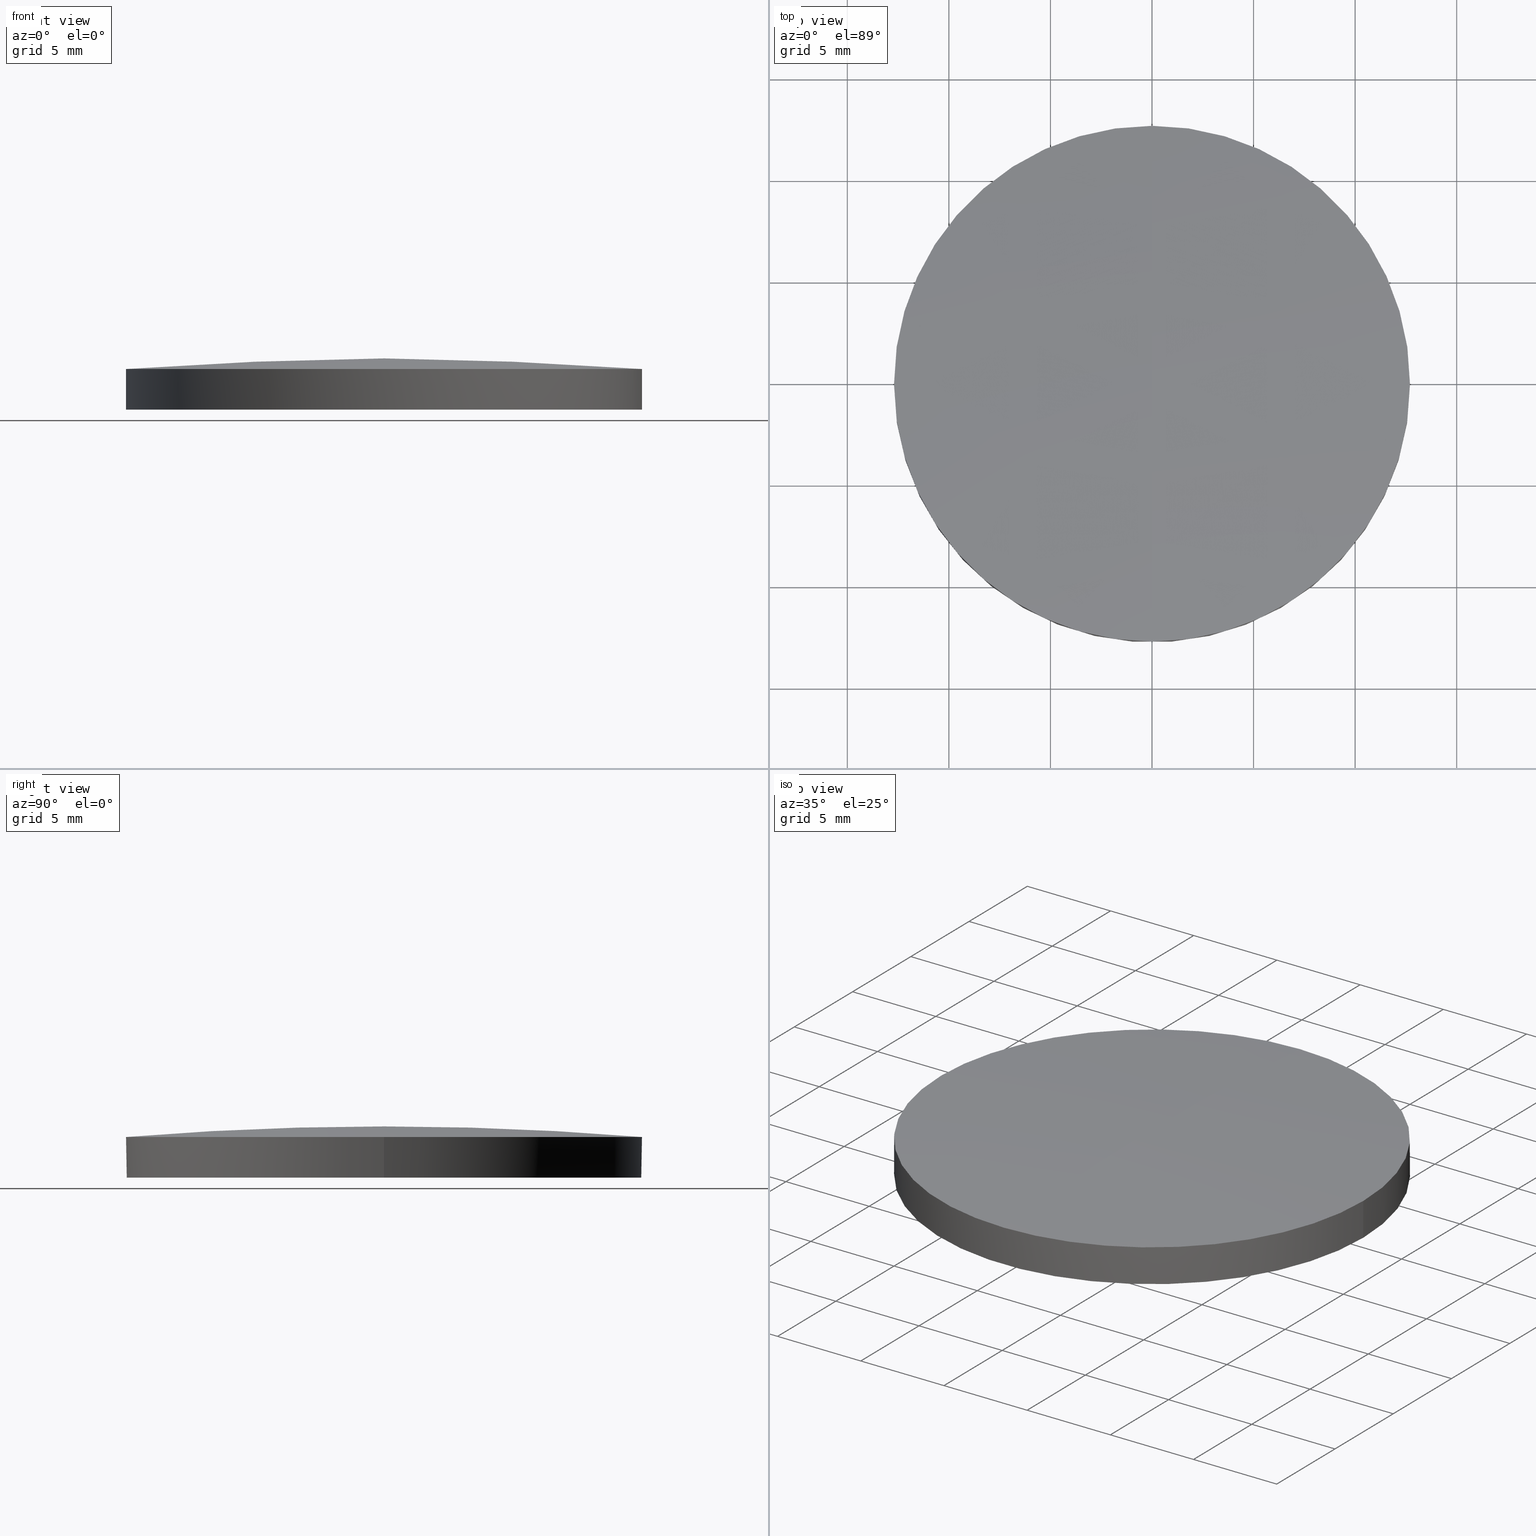
[diagram: canonical four-view strip — front | top / right | iso, engineering-drawing reading convention]
A machine part, canonical four-view strip (front | top / right | iso — engineering-drawing reading convention). The complete STEP part file that produces these views, byte-faithful:
ISO-10303-21;
HEADER;
FILE_DESCRIPTION (( 'STEP AP214' ),
    '1' );
FILE_NAME ('4442-E0W.STEP',
    '2009-12-21T17:01:34',
    ( ' ' ),
    ( ' ' ),
    'SwSTEP 2.0',
    'SolidWorks 2009',
    '' );
FILE_SCHEMA (( 'AUTOMOTIVE_DESIGN' ));
ENDSEC;

DATA;
#1 = CARTESIAN_POINT ( 'NONE',  ( 0.0000000000000000000, 0.0000000000000000000, 0.7372090656191160300 ) ) ;
#2 = AXIS2_PLACEMENT_3D ( 'NONE', #1, #3, #5 ) ;
#3 = DIRECTION ( 'NONE',  ( -0.0000000000000000000, -0.0000000000000000000, 1.000000000000000000 ) ) ;
#4 = MECHANICAL_DESIGN_GEOMETRIC_PRESENTATION_REPRESENTATION (  '', ( #92 ), #9 ) ;
#5 = DIRECTION ( 'NONE',  ( 1.000000000000000000, 0.0000000000000000000, 0.0000000000000000000 ) ) ;
#6 =( LENGTH_UNIT ( ) NAMED_UNIT ( * ) SI_UNIT ( .MILLI., .METRE. ) );
#7 =( NAMED_UNIT ( * ) PLANE_ANGLE_UNIT ( ) SI_UNIT ( $, .RADIAN. ) );
#8 =( NAMED_UNIT ( * ) SI_UNIT ( $, .STERADIAN. ) SOLID_ANGLE_UNIT ( ) );
#9 =( GEOMETRIC_REPRESENTATION_CONTEXT ( 3 ) GLOBAL_UNCERTAINTY_ASSIGNED_CONTEXT ( ( #11 ) ) GLOBAL_UNIT_ASSIGNED_CONTEXT ( ( #6, #7, #8 ) ) REPRESENTATION_CONTEXT ( 'NONE', 'WORKASPACE' ) );
#10 =( NAMED_UNIT ( * ) SI_UNIT ( $, .STERADIAN. ) SOLID_ANGLE_UNIT ( ) );
#11 = UNCERTAINTY_MEASURE_WITH_UNIT (LENGTH_MEASURE( 1.000000000000000100E-005 ), #6, 'distance_accuracy_value', 'NONE');
#12 =( NAMED_UNIT ( * ) SI_UNIT ( $, .STERADIAN. ) SOLID_ANGLE_UNIT ( ) );
#13 = ORIENTED_EDGE ( 'NONE', *, *, #34, .F. ) ;
#14 = ORIENTED_EDGE ( 'NONE', *, *, #52, .F. ) ;
#15 = ORIENTED_EDGE ( 'NONE', *, *, #25, .F. ) ;
#16 = ADVANCED_FACE ( 'NONE', ( #33 ), #63, .T. ) ;
#17 = DIRECTION ( 'NONE',  ( -0.0000000000000000000, -0.0000000000000000000, 1.000000000000000000 ) ) ;
#18 = VECTOR ( 'NONE', #17, 1000.000000000000000 ) ;
#19 = CARTESIAN_POINT ( 'NONE',  ( 12.69999999999999900, 0.0000000000000000000, 4.308132045400366600 ) ) ;
#20 = LINE ( 'NONE', #19, #18 ) ;
#21 = CIRCLE ( 'NONE', #2, 12.69999999999999900 ) ;
#22 = ORIENTED_EDGE ( 'NONE', *, *, #23, .F. ) ;
#23 = EDGE_CURVE ( 'NONE', #49, #77, #20, .T. ) ;
#24 = ORIENTED_EDGE ( 'NONE', *, *, #25, .T. ) ;
#25 = EDGE_CURVE ( 'NONE', #73, #77, #21, .T. ) ;
#26 = ORIENTED_EDGE ( 'NONE', *, *, #75, .F. ) ;
#27 = EDGE_CURVE ( 'NONE', #36, #56, #103, .T. ) ;
#28 = ORIENTED_EDGE ( 'NONE', *, *, #80, .T. ) ;
#29 = ADVANCED_FACE ( 'NONE', ( #98 ), #140, .T. ) ;
#30 = ADVANCED_FACE ( 'NONE', ( #118 ), #141, .T. ) ;
#31 = FILL_AREA_STYLE_COLOUR ( '', #32 ) ;
#32 = COLOUR_RGB ( '',0.9568627450980391500, 0.9490196078431372100, 0.9607843137254902200 ) ;
#33 = FACE_OUTER_BOUND ( 'NONE', #35, .T. ) ;
#34 = EDGE_CURVE ( 'NONE', #49, #36, #128, .T. ) ;
#35 = EDGE_LOOP ( 'NONE', ( #72, #48, #82, #57 ) ) ;
#36 = VERTEX_POINT ( 'NONE', #123 ) ;
#37 = DIRECTION ( 'NONE',  ( 0.0000000000000000000, 1.000000000000000000, 0.0000000000000000000 ) ) ;
#38 = DIRECTION ( 'NONE',  ( -1.000000000000000000, 0.0000000000000000000, 0.0000000000000000000 ) ) ;
#39 = CARTESIAN_POINT ( 'NONE',  ( 0.0000000000000000000, 0.0000000000000000000, -153.2600000000000200 ) ) ;
#40 = AXIS2_PLACEMENT_3D ( 'NONE', #39, #38, #37 ) ;
#41 =( LENGTH_UNIT ( ) NAMED_UNIT ( * ) SI_UNIT ( .MILLI., .METRE. ) );
#42 = STYLED_ITEM ( 'NONE', ( #43 ), #16 ) ;
#43 = PRESENTATION_STYLE_ASSIGNMENT (( #44 ) ) ;
#44 = SURFACE_STYLE_USAGE ( .BOTH. , #45 ) ;
#45 = SURFACE_SIDE_STYLE ('',( #46 ) ) ;
#46 = SURFACE_STYLE_FILL_AREA ( #59 ) ;
#47 = ADVANCED_FACE ( 'NONE', ( #122 ), #153, .T. ) ;
#48 = ORIENTED_EDGE ( 'NONE', *, *, #88, .T. ) ;
#49 = VERTEX_POINT ( 'NONE', #166 ) ;
#50 = ORIENTED_EDGE ( 'NONE', *, *, #83, .F. ) ;
#51 = ORIENTED_EDGE ( 'NONE', *, *, #75, .T. ) ;
#52 = EDGE_CURVE ( 'NONE', #36, #49, #165, .T. ) ;
#53 = ORIENTED_EDGE ( 'NONE', *, *, #27, .F. ) ;
#54 = MECHANICAL_DESIGN_GEOMETRIC_PRESENTATION_REPRESENTATION (  '', ( #42 ), #58 ) ;
#55 = PRESENTATION_LAYER_ASSIGNMENT (  '', '', ( #42 ) ) ;
#56 = VERTEX_POINT ( 'NONE', #206 ) ;
#57 = ORIENTED_EDGE ( 'NONE', *, *, #80, .F. ) ;
#58 =( GEOMETRIC_REPRESENTATION_CONTEXT ( 3 ) GLOBAL_UNCERTAINTY_ASSIGNED_CONTEXT ( ( #85 ) ) GLOBAL_UNIT_ASSIGNED_CONTEXT ( ( #41, #74, #12 ) ) REPRESENTATION_CONTEXT ( 'NONE', 'WORKASPACE' ) );
#59 = FILL_AREA_STYLE ('',( #31 ) ) ;
#60 = APPLICATION_CONTEXT ( 'automotive_design' ) ;
#61 = UNCERTAINTY_MEASURE_WITH_UNIT (LENGTH_MEASURE( 1.000000000000000100E-005 ), #129, 'distance_accuracy_value', 'NONE');
#62 = EDGE_LOOP ( 'NONE', ( #50, #24, #51, #28 ) ) ;
#63 = SPHERICAL_SURFACE ( 'NONE', #40, 154.5200000000000100 ) ;
#64 = EDGE_LOOP ( 'NONE', ( #13, #14 ) ) ;
#65 = CLOSED_SHELL ( 'NONE', ( #30, #16, #47, #29, #76 ) ) ;
#66 = EDGE_LOOP ( 'NONE', ( #53, #68, #69, #15, #67 ) ) ;
#67 = ORIENTED_EDGE ( 'NONE', *, *, #88, .F. ) ;
#68 = ORIENTED_EDGE ( 'NONE', *, *, #52, .T. ) ;
#69 = ORIENTED_EDGE ( 'NONE', *, *, #23, .T. ) ;
#70 = VERTEX_POINT ( 'NONE', #202 ) ;
#71 = ORIENTED_EDGE ( 'NONE', *, *, #27, .T. ) ;
#72 = ORIENTED_EDGE ( 'NONE', *, *, #81, .T. ) ;
#73 = VERTEX_POINT ( 'NONE', #164 ) ;
#74 =( NAMED_UNIT ( * ) PLANE_ANGLE_UNIT ( ) SI_UNIT ( $, .RADIAN. ) );
#75 = EDGE_CURVE ( 'NONE', #77, #70, #195, .T. ) ;
#76 = ADVANCED_FACE ( 'NONE', ( #198 ), #201, .F. ) ;
#77 = VERTEX_POINT ( 'NONE', #171 ) ;
#78 = ORIENTED_EDGE ( 'NONE', *, *, #34, .T. ) ;
#79 = EDGE_LOOP ( 'NONE', ( #78, #71, #84, #26, #22 ) ) ;
#80 = EDGE_CURVE ( 'NONE', #70, #89, #170, .T. ) ;
#81 = EDGE_CURVE ( 'NONE', #70, #56, #177, .T. ) ;
#82 = ORIENTED_EDGE ( 'NONE', *, *, #83, .T. ) ;
#83 = EDGE_CURVE ( 'NONE', #73, #89, #154, .T. ) ;
#84 = ORIENTED_EDGE ( 'NONE', *, *, #81, .F. ) ;
#85 = UNCERTAINTY_MEASURE_WITH_UNIT (LENGTH_MEASURE( 1.000000000000000100E-005 ), #41, 'distance_accuracy_value', 'NONE');
#86 = PRODUCT ( '4442-E0W', '4442-E0W', '', ( #87 ) ) ;
#87 = PRODUCT_CONTEXT ( 'NONE', #261, 'mechanical' ) ;
#88 = EDGE_CURVE ( 'NONE', #56, #73, #235, .T. ) ;
#89 = VERTEX_POINT ( 'NONE', #253 ) ;
#90 = MANIFOLD_SOLID_BREP ( 'NONE', #65 ) ;
#91 = PRESENTATION_LAYER_ASSIGNMENT (  '', '', ( #92 ) ) ;
#92 = STYLED_ITEM ( 'NONE', ( #93 ), #29 ) ;
#93 = PRESENTATION_STYLE_ASSIGNMENT (( #94 ) ) ;
#94 = SURFACE_STYLE_USAGE ( .BOTH. , #95 ) ;
#95 = SURFACE_SIDE_STYLE ('',( #96 ) ) ;
#96 = SURFACE_STYLE_FILL_AREA ( #104 ) ;
#97 = COLOUR_RGB ( '',0.9568627450980391500, 0.9490196078431372100, 0.9607843137254902200 ) ;
#98 = FACE_OUTER_BOUND ( 'NONE', #66, .T. ) ;
#99 = FILL_AREA_STYLE_COLOUR ( '', #97 ) ;
#100 = DIRECTION ( 'NONE',  ( -0.0000000000000000000, -0.0000000000000000000, 1.000000000000000000 ) ) ;
#101 = VECTOR ( 'NONE', #100, 1000.000000000000000 ) ;
#102 = CARTESIAN_POINT ( 'NONE',  ( -12.69999999999999900, 1.555250069354419100E-015, 4.308132045400366600 ) ) ;
#103 = LINE ( 'NONE', #102, #101 ) ;
#104 = FILL_AREA_STYLE ('',( #99 ) ) ;
#105 = PRODUCT_DEFINITION ( 'UNKNOWN', '', #155, #106 ) ;
#106 = PRODUCT_DEFINITION_CONTEXT ( 'detailed design', #60, 'design' ) ;
#107 = APPLICATION_PROTOCOL_DEFINITION ( 'draft international standard', 'automotive_design', 1998, #60 ) ;
#108 = CARTESIAN_POINT ( 'NONE',  ( 0.0000000000000000000, 0.0000000000000000000, 4.308132045400366600 ) ) ;
#109 = DIRECTION ( 'NONE',  ( 1.000000000000000000, 0.0000000000000000000, 0.0000000000000000000 ) ) ;
#110 = PRESENTATION_LAYER_ASSIGNMENT (  '', '', ( #111 ) ) ;
#111 = STYLED_ITEM ( 'NONE', ( #112 ), #47 ) ;
#112 = PRESENTATION_STYLE_ASSIGNMENT (( #113 ) ) ;
#113 = SURFACE_STYLE_USAGE ( .BOTH. , #114 ) ;
#114 = SURFACE_SIDE_STYLE ('',( #115 ) ) ;
#115 = SURFACE_STYLE_FILL_AREA ( #119 ) ;
#116 = AXIS2_PLACEMENT_3D ( 'NONE', #108, #145, #109 ) ;
#117 = FILL_AREA_STYLE_COLOUR ( '', #136 ) ;
#118 = FACE_OUTER_BOUND ( 'NONE', #79, .T. ) ;
#119 = FILL_AREA_STYLE ('',( #120 ) ) ;
#120 = FILL_AREA_STYLE_COLOUR ( '', #121 ) ;
#121 = COLOUR_RGB ( '',0.9568627450980391500, 0.9490196078431372100, 0.9607843137254902200 ) ;
#122 = FACE_OUTER_BOUND ( 'NONE', #62, .T. ) ;
#123 = CARTESIAN_POINT ( 'NONE',  ( -12.69999999999999900, 1.555250069354419100E-015, -1.259999999999999800 ) ) ;
#124 = DIRECTION ( 'NONE',  ( 1.000000000000000000, 0.0000000000000000000, 0.0000000000000000000 ) ) ;
#125 = DIRECTION ( 'NONE',  ( -0.0000000000000000000, -0.0000000000000000000, 1.000000000000000000 ) ) ;
#126 = CARTESIAN_POINT ( 'NONE',  ( 0.0000000000000000000, 0.0000000000000000000, -1.259999999999999800 ) ) ;
#127 = AXIS2_PLACEMENT_3D ( 'NONE', #126, #125, #124 ) ;
#128 = CIRCLE ( 'NONE', #127, 12.69999999999999900 ) ;
#129 =( LENGTH_UNIT ( ) NAMED_UNIT ( * ) SI_UNIT ( .MILLI., .METRE. ) );
#130 = MECHANICAL_DESIGN_GEOMETRIC_PRESENTATION_REPRESENTATION (  '', ( #111 ), #191 ) ;
#131 = MECHANICAL_DESIGN_GEOMETRIC_PRESENTATION_REPRESENTATION (  '', ( #137 ), #134 ) ;
#132 = PRESENTATION_LAYER_ASSIGNMENT (  '', '', ( #137 ) ) ;
#133 =( LENGTH_UNIT ( ) NAMED_UNIT ( * ) SI_UNIT ( .MILLI., .METRE. ) );
#134 =( GEOMETRIC_REPRESENTATION_CONTEXT ( 3 ) GLOBAL_UNCERTAINTY_ASSIGNED_CONTEXT ( ( #148 ) ) GLOBAL_UNIT_ASSIGNED_CONTEXT ( ( #133, #139, #135 ) ) REPRESENTATION_CONTEXT ( 'NONE', 'WORKASPACE' ) );
#135 =( NAMED_UNIT ( * ) SI_UNIT ( $, .STERADIAN. ) SOLID_ANGLE_UNIT ( ) );
#136 = COLOUR_RGB ( '',0.9568627450980391500, 0.9490196078431372100, 0.9607843137254902200 ) ;
#137 = STYLED_ITEM ( 'NONE', ( #138 ), #30 ) ;
#138 = PRESENTATION_STYLE_ASSIGNMENT (( #142 ) ) ;
#139 =( NAMED_UNIT ( * ) PLANE_ANGLE_UNIT ( ) SI_UNIT ( $, .RADIAN. ) );
#140 = CYLINDRICAL_SURFACE ( 'NONE', #116, 12.69999999999999900 ) ;
#141 = CYLINDRICAL_SURFACE ( 'NONE', #146, 12.69999999999999900 ) ;
#142 = SURFACE_STYLE_USAGE ( .BOTH. , #143 ) ;
#143 = SURFACE_SIDE_STYLE ('',( #144 ) ) ;
#144 = SURFACE_STYLE_FILL_AREA ( #152 ) ;
#145 = DIRECTION ( 'NONE',  ( -0.0000000000000000000, -0.0000000000000000000, 1.000000000000000000 ) ) ;
#146 = AXIS2_PLACEMENT_3D ( 'NONE', #147, #151, #150 ) ;
#147 = CARTESIAN_POINT ( 'NONE',  ( 0.0000000000000000000, 0.0000000000000000000, 4.308132045400366600 ) ) ;
#148 = UNCERTAINTY_MEASURE_WITH_UNIT (LENGTH_MEASURE( 1.000000000000000100E-005 ), #133, 'distance_accuracy_value', 'NONE');
#149 =( NAMED_UNIT ( * ) PLANE_ANGLE_UNIT ( ) SI_UNIT ( $, .RADIAN. ) );
#150 = DIRECTION ( 'NONE',  ( 1.000000000000000000, 0.0000000000000000000, 0.0000000000000000000 ) ) ;
#151 = DIRECTION ( 'NONE',  ( -0.0000000000000000000, -0.0000000000000000000, 1.000000000000000000 ) ) ;
#152 = FILL_AREA_STYLE ('',( #117 ) ) ;
#153 = SPHERICAL_SURFACE ( 'NONE', #186, 154.5200000000000100 ) ;
#154 = CIRCLE ( 'NONE', #210, 154.5200000000000100 ) ;
#155 = PRODUCT_DEFINITION_FORMATION_WITH_SPECIFIED_SOURCE ( 'ANY', '', #86, .NOT_KNOWN. ) ;
#156 = DIRECTION ( 'NONE',  ( 1.000000000000000000, 0.0000000000000000000, 0.0000000000000000000 ) ) ;
#157 = DIRECTION ( 'NONE',  ( -0.0000000000000000000, -0.0000000000000000000, 1.000000000000000000 ) ) ;
#158 = DIRECTION ( 'NONE',  ( 1.000000000000000000, 0.0000000000000000000, 0.0000000000000000000 ) ) ;
#159 = DIRECTION ( 'NONE',  ( -0.0000000000000000000, -0.0000000000000000000, 1.000000000000000000 ) ) ;
#160 = CARTESIAN_POINT ( 'NONE',  ( 0.0000000000000000000, 0.0000000000000000000, -1.259999999999999800 ) ) ;
#161 = FILL_AREA_STYLE_COLOUR ( '', #162 ) ;
#162 = COLOUR_RGB ( '',0.9568627450980391500, 0.9490196078431372100, 0.9607843137254902200 ) ;
#163 = DIRECTION ( 'NONE',  ( 1.000000000000000000, 0.0000000000000000000, 0.0000000000000000000 ) ) ;
#164 = CARTESIAN_POINT ( 'NONE',  ( -1.555250069354422800E-015, -12.70000000000002900, 0.7372090656191268000 ) ) ;
#165 = CIRCLE ( 'NONE', #205, 12.69999999999999900 ) ;
#166 = CARTESIAN_POINT ( 'NONE',  ( 12.69999999999999900, 0.0000000000000000000, -1.259999999999999800 ) ) ;
#167 = MECHANICAL_DESIGN_GEOMETRIC_PRESENTATION_REPRESENTATION (  '', ( #169 ), #204 ) ;
#168 = PRESENTATION_LAYER_ASSIGNMENT (  '', '', ( #169 ) ) ;
#169 = STYLED_ITEM ( 'NONE', ( #180 ), #76 ) ;
#170 = CIRCLE ( 'NONE', #189, 154.5200000000000400 ) ;
#171 = CARTESIAN_POINT ( 'NONE',  ( 12.69999999999999900, 0.0000000000000000000, 0.7372090656191160300 ) ) ;
#172 = DIRECTION ( 'NONE',  ( 1.000000000000000000, 0.0000000000000000000, 0.0000000000000000000 ) ) ;
#173 = DIRECTION ( 'NONE',  ( 0.0000000000000000000, -0.0000000000000000000, 1.000000000000000000 ) ) ;
#174 = AXIS2_PLACEMENT_3D ( 'NONE', #200, #173, #172 ) ;
#175 =( NAMED_UNIT ( * ) PLANE_ANGLE_UNIT ( ) SI_UNIT ( $, .RADIAN. ) );
#176 = AXIS2_PLACEMENT_3D ( 'NONE', #190, #157, #156 ) ;
#177 = CIRCLE ( 'NONE', #176, 12.69999999999999900 ) ;
#178 = DIRECTION ( 'NONE',  ( 0.0000000000000000000, 0.0000000000000000000, -1.000000000000000000 ) ) ;
#179 =( NAMED_UNIT ( * ) SI_UNIT ( $, .STERADIAN. ) SOLID_ANGLE_UNIT ( ) );
#180 = PRESENTATION_STYLE_ASSIGNMENT (( #181 ) ) ;
#181 = SURFACE_STYLE_USAGE ( .BOTH. , #182 ) ;
#182 = SURFACE_SIDE_STYLE ('',( #183 ) ) ;
#183 = SURFACE_STYLE_FILL_AREA ( #197 ) ;
#184 = DIRECTION ( 'NONE',  ( -1.000000000000000000, 0.0000000000000000000, 0.0000000000000000000 ) ) ;
#185 = CARTESIAN_POINT ( 'NONE',  ( 0.0000000000000000000, 0.0000000000000000000, -153.2600000000000200 ) ) ;
#186 = AXIS2_PLACEMENT_3D ( 'NONE', #185, #184, #203 ) ;
#187 = DIRECTION ( 'NONE',  ( 1.000000000000000000, 0.0000000000000000000, 0.0000000000000000000 ) ) ;
#188 = CARTESIAN_POINT ( 'NONE',  ( 0.0000000000000000000, 0.0000000000000000000, -153.2600000000000200 ) ) ;
#189 = AXIS2_PLACEMENT_3D ( 'NONE', #188, #187, #178 ) ;
#190 = CARTESIAN_POINT ( 'NONE',  ( 0.0000000000000000000, 0.0000000000000000000, 0.7372090656191160300 ) ) ;
#191 =( GEOMETRIC_REPRESENTATION_CONTEXT ( 3 ) GLOBAL_UNCERTAINTY_ASSIGNED_CONTEXT ( ( #61 ) ) GLOBAL_UNIT_ASSIGNED_CONTEXT ( ( #129, #149, #10 ) ) REPRESENTATION_CONTEXT ( 'NONE', 'WORKASPACE' ) );
#192 = DIRECTION ( 'NONE',  ( -0.0000000000000000000, -0.0000000000000000000, 1.000000000000000000 ) ) ;
#193 = CARTESIAN_POINT ( 'NONE',  ( 0.0000000000000000000, 0.0000000000000000000, 0.7372090656191160300 ) ) ;
#194 = AXIS2_PLACEMENT_3D ( 'NONE', #193, #192, #163 ) ;
#195 = CIRCLE ( 'NONE', #194, 12.69999999999999900 ) ;
#196 = UNCERTAINTY_MEASURE_WITH_UNIT (LENGTH_MEASURE( 1.000000000000000100E-005 ), #199, 'distance_accuracy_value', 'NONE');
#197 = FILL_AREA_STYLE ('',( #161 ) ) ;
#198 = FACE_OUTER_BOUND ( 'NONE', #64, .T. ) ;
#199 =( LENGTH_UNIT ( ) NAMED_UNIT ( * ) SI_UNIT ( .MILLI., .METRE. ) );
#200 = CARTESIAN_POINT ( 'NONE',  ( 0.0000000000000000000, 4.629164900776995200E-016, -1.259999999999999800 ) ) ;
#201 = PLANE ( 'NONE',  #174 ) ;
#202 = CARTESIAN_POINT ( 'NONE',  ( 0.0000000000000000000, 12.70000000000002900, 0.7372090656191268000 ) ) ;
#203 = DIRECTION ( 'NONE',  ( 0.0000000000000000000, 1.000000000000000000, 0.0000000000000000000 ) ) ;
#204 =( GEOMETRIC_REPRESENTATION_CONTEXT ( 3 ) GLOBAL_UNCERTAINTY_ASSIGNED_CONTEXT ( ( #196 ) ) GLOBAL_UNIT_ASSIGNED_CONTEXT ( ( #199, #175, #179 ) ) REPRESENTATION_CONTEXT ( 'NONE', 'WORKASPACE' ) );
#205 = AXIS2_PLACEMENT_3D ( 'NONE', #160, #159, #158 ) ;
#206 = CARTESIAN_POINT ( 'NONE',  ( -12.69999999999999900, 1.555250069354419100E-015, 0.7372090656191160300 ) ) ;
#207 = SHAPE_DEFINITION_REPRESENTATION ( #208, #215 ) ;
#208 = PRODUCT_DEFINITION_SHAPE ( 'NONE', 'NONE',  #105 ) ;
#209 = UNCERTAINTY_MEASURE_WITH_UNIT (LENGTH_MEASURE( 1.000000000000000100E-005 ), #214, 'distance_accuracy_value', 'NONE');
#210 = AXIS2_PLACEMENT_3D ( 'NONE', #233, #227, #259 ) ;
#211 =( NAMED_UNIT ( * ) PLANE_ANGLE_UNIT ( ) SI_UNIT ( $, .RADIAN. ) );
#212 =( GEOMETRIC_REPRESENTATION_CONTEXT ( 3 ) GLOBAL_UNCERTAINTY_ASSIGNED_CONTEXT ( ( #209 ) ) GLOBAL_UNIT_ASSIGNED_CONTEXT ( ( #214, #213, #257 ) ) REPRESENTATION_CONTEXT ( 'NONE', 'WORKASPACE' ) );
#213 =( NAMED_UNIT ( * ) PLANE_ANGLE_UNIT ( ) SI_UNIT ( $, .RADIAN. ) );
#214 =( LENGTH_UNIT ( ) NAMED_UNIT ( * ) SI_UNIT ( .MILLI., .METRE. ) );
#215 = ADVANCED_BREP_SHAPE_REPRESENTATION ( '4442-E0W', ( #90, #258 ), #212 ) ;
#216 =( NAMED_UNIT ( * ) SI_UNIT ( $, .STERADIAN. ) SOLID_ANGLE_UNIT ( ) );
#217 = STYLED_ITEM ( 'NONE', ( #218 ), #90 ) ;
#218 = PRESENTATION_STYLE_ASSIGNMENT (( #224 ) ) ;
#219 = MECHANICAL_DESIGN_GEOMETRIC_PRESENTATION_REPRESENTATION (  '', ( #217 ), #234 ) ;
#220 = PRESENTATION_LAYER_ASSIGNMENT (  '', '', ( #217 ) ) ;
#221 = DIRECTION ( 'NONE',  ( 1.000000000000000000, 0.0000000000000000000, 0.0000000000000000000 ) ) ;
#222 = UNCERTAINTY_MEASURE_WITH_UNIT (LENGTH_MEASURE( 1.000000000000000100E-005 ), #245, 'distance_accuracy_value', 'NONE');
#223 =( NAMED_UNIT ( * ) SI_UNIT ( $, .STERADIAN. ) SOLID_ANGLE_UNIT ( ) );
#224 = SURFACE_STYLE_USAGE ( .BOTH. , #225 ) ;
#225 = SURFACE_SIDE_STYLE ('',( #226 ) ) ;
#226 = SURFACE_STYLE_FILL_AREA ( #254 ) ;
#227 = DIRECTION ( 'NONE',  ( -1.000000000000000000, 1.224606353822377300E-016, 0.0000000000000000000 ) ) ;
#228 = DIRECTION ( 'NONE',  ( 1.000000000000000000, 0.0000000000000000000, 0.0000000000000000000 ) ) ;
#229 = DIRECTION ( 'NONE',  ( 0.0000000000000000000, 0.0000000000000000000, 1.000000000000000000 ) ) ;
#230 = PRODUCT_RELATED_PRODUCT_CATEGORY ( 'part', '', ( #86 ) ) ;
#231 = CARTESIAN_POINT ( 'NONE',  ( 0.0000000000000000000, 0.0000000000000000000, 0.7372090656191160300 ) ) ;
#232 =( GEOMETRIC_REPRESENTATION_CONTEXT ( 3 ) GLOBAL_UNCERTAINTY_ASSIGNED_CONTEXT ( ( #222 ) ) GLOBAL_UNIT_ASSIGNED_CONTEXT ( ( #245, #246, #223 ) ) REPRESENTATION_CONTEXT ( 'NONE', 'WORKASPACE' ) );
#233 = CARTESIAN_POINT ( 'NONE',  ( 0.0000000000000000000, 0.0000000000000000000, -153.2600000000000200 ) ) ;
#234 =( GEOMETRIC_REPRESENTATION_CONTEXT ( 3 ) GLOBAL_UNCERTAINTY_ASSIGNED_CONTEXT ( ( #244 ) ) GLOBAL_UNIT_ASSIGNED_CONTEXT ( ( #236, #211, #216 ) ) REPRESENTATION_CONTEXT ( 'NONE', 'WORKASPACE' ) );
#235 = CIRCLE ( 'NONE', #252, 12.69999999999999900 ) ;
#236 =( LENGTH_UNIT ( ) NAMED_UNIT ( * ) SI_UNIT ( .MILLI., .METRE. ) );
#237 = SURFACE_SIDE_STYLE ('',( #238 ) ) ;
#238 = SURFACE_STYLE_FILL_AREA ( #239 ) ;
#239 = FILL_AREA_STYLE ('',( #240 ) ) ;
#240 = FILL_AREA_STYLE_COLOUR ( '', #241 ) ;
#241 = COLOUR_RGB ( '',0.7960784313725489700, 0.8235294117647058400, 0.9372549019607843100 ) ;
#242 = DIRECTION ( 'NONE',  ( -0.0000000000000000000, -0.0000000000000000000, 1.000000000000000000 ) ) ;
#243 = CARTESIAN_POINT ( 'NONE',  ( 0.0000000000000000000, 0.0000000000000000000, 0.0000000000000000000 ) ) ;
#244 = UNCERTAINTY_MEASURE_WITH_UNIT (LENGTH_MEASURE( 1.000000000000000100E-005 ), #236, 'distance_accuracy_value', 'NONE');
#245 =( LENGTH_UNIT ( ) NAMED_UNIT ( * ) SI_UNIT ( .MILLI., .METRE. ) );
#246 =( NAMED_UNIT ( * ) PLANE_ANGLE_UNIT ( ) SI_UNIT ( $, .RADIAN. ) );
#247 = MECHANICAL_DESIGN_GEOMETRIC_PRESENTATION_REPRESENTATION (  '', ( #249 ), #232 ) ;
#248 = PRESENTATION_LAYER_ASSIGNMENT (  '', '', ( #249 ) ) ;
#249 = STYLED_ITEM ( 'NONE', ( #250 ), #215 ) ;
#250 = PRESENTATION_STYLE_ASSIGNMENT (( #251 ) ) ;
#251 = SURFACE_STYLE_USAGE ( .BOTH. , #237 ) ;
#252 = AXIS2_PLACEMENT_3D ( 'NONE', #231, #242, #221 ) ;
#253 = CARTESIAN_POINT ( 'NONE',  ( 0.0000000000000000000, 9.461308689631688100E-015, 1.260000000000011100 ) ) ;
#254 = FILL_AREA_STYLE ('',( #255 ) ) ;
#255 = FILL_AREA_STYLE_COLOUR ( '', #256 ) ;
#256 = COLOUR_RGB ( '',0.7960784313725489700, 0.8235294117647058400, 0.9372549019607843100 ) ;
#257 =( NAMED_UNIT ( * ) SI_UNIT ( $, .STERADIAN. ) SOLID_ANGLE_UNIT ( ) );
#258 = AXIS2_PLACEMENT_3D ( 'NONE', #243, #229, #228 ) ;
#259 = DIRECTION ( 'NONE',  ( -1.224606353822377300E-016, -1.000000000000000000, 0.0000000000000000000 ) ) ;
#260 = APPLICATION_PROTOCOL_DEFINITION ( 'draft international standard', 'automotive_design', 1998, #261 ) ;
#261 = APPLICATION_CONTEXT ( 'automotive_design' ) ;
ENDSEC;
END-ISO-10303-21;
